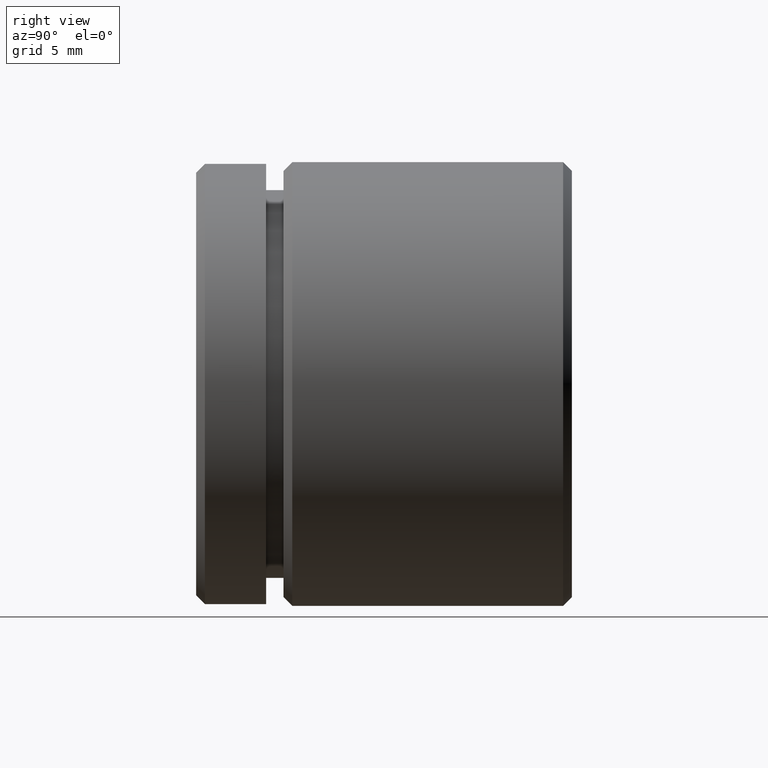
[diagram: clean part render]
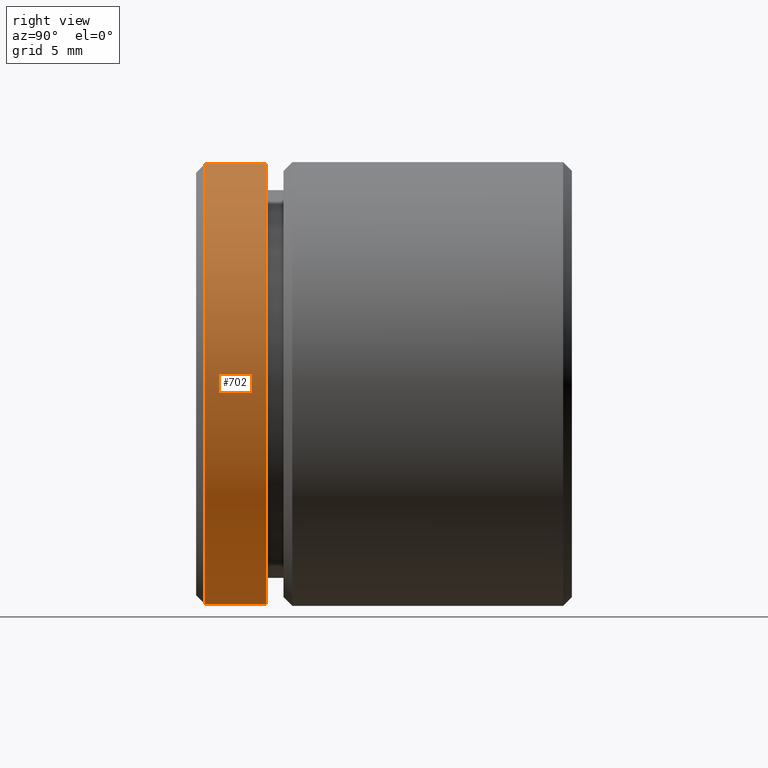
[diagram: same view with one face highlighted and labeled with its STEP entity id]
A machine part, right view. The second image highlights one B-rep face of the part: STEP entity #702.
In plain terms, the highlighted cylindrical surface (partial cylindrical patch) has radius 12.6 mm, axis along (-0, -1, -0).
Its self-contained STEP definition (entity closure, byte-faithful):
#12 = CARTESIAN_POINT ( 'NONE',  ( 0.0000000000000000000, 4.000000000000000000, 0.0000000000000000000 ) ) ;
#14 = ORIENTED_EDGE ( 'NONE', *, *, #704, .T. ) ;
#79 = FACE_OUTER_BOUND ( 'NONE', #397, .T. ) ;
#87 = CARTESIAN_POINT ( 'NONE',  ( 1.543054966925665100E-015, 0.5000000000000073300, 12.60000000000000000 ) ) ;
#92 = CARTESIAN_POINT ( 'NONE',  ( 0.0000000000000000000, 4.000000000000000000, -12.60000000000000000 ) ) ;
#99 = VERTEX_POINT ( 'NONE', #87 ) ;
#156 = CYLINDRICAL_SURFACE ( 'NONE', #676, 12.60000000000000000 ) ;
#161 = DIRECTION ( 'NONE',  ( 0.0000000000000000000, 1.000000000000000000, 0.0000000000000000000 ) ) ;
#165 = DIRECTION ( 'NONE',  ( -0.0000000000000000000, -1.000000000000000000, -0.0000000000000000000 ) ) ;
#166 = DIRECTION ( 'NONE',  ( 0.0000000000000000000, 0.0000000000000000000, -1.000000000000000000 ) ) ;
#209 = DIRECTION ( 'NONE',  ( 0.0000000000000000000, 0.0000000000000000000, -1.000000000000000000 ) ) ;
#218 = CARTESIAN_POINT ( 'NONE',  ( 0.0000000000000000000, 0.0000000000000000000, -12.60000000000000000 ) ) ;
#254 = CIRCLE ( 'NONE', #622, 12.60000000000000000 ) ;
#274 = EDGE_CURVE ( 'NONE', #99, #359, #305, .T. ) ;
#305 = CIRCLE ( 'NONE', #742, 12.60000000000000000 ) ;
#314 = CARTESIAN_POINT ( 'NONE',  ( 0.0000000000000000000, 0.5000000000000073300, 0.0000000000000000000 ) ) ;
#333 = LINE ( 'NONE', #218, #353 ) ;
#342 = CARTESIAN_POINT ( 'NONE',  ( 0.0000000000000000000, 0.5000000000000073300, -12.60000000000000000 ) ) ;
#353 = VECTOR ( 'NONE', #165, 1000.000000000000000 ) ;
#359 = VERTEX_POINT ( 'NONE', #342 ) ;
#361 = CARTESIAN_POINT ( 'NONE',  ( 0.0000000000000000000, 0.0000000000000000000, 0.0000000000000000000 ) ) ;
#364 = VERTEX_POINT ( 'NONE', #785 ) ;
#397 = EDGE_LOOP ( 'NONE', ( #14, #597, #448, #634 ) ) ;
#416 = CARTESIAN_POINT ( 'NONE',  ( 1.543054966925665100E-015, 0.0000000000000000000, 12.60000000000000000 ) ) ;
#448 = ORIENTED_EDGE ( 'NONE', *, *, #274, .T. ) ;
#539 = EDGE_CURVE ( 'NONE', #364, #99, #559, .T. ) ;
#559 = LINE ( 'NONE', #416, #590 ) ;
#577 = DIRECTION ( 'NONE',  ( -0.0000000000000000000, -1.000000000000000000, -0.0000000000000000000 ) ) ;
#590 = VECTOR ( 'NONE', #623, 1000.000000000000000 ) ;
#597 = ORIENTED_EDGE ( 'NONE', *, *, #539, .T. ) ;
#622 = AXIS2_PLACEMENT_3D ( 'NONE', #12, #577, #845 ) ;
#623 = DIRECTION ( 'NONE',  ( -0.0000000000000000000, -1.000000000000000000, -0.0000000000000000000 ) ) ;
#634 = ORIENTED_EDGE ( 'NONE', *, *, #717, .F. ) ;
#659 = DIRECTION ( 'NONE',  ( -0.0000000000000000000, -1.000000000000000000, -0.0000000000000000000 ) ) ;
#672 = VERTEX_POINT ( 'NONE', #92 ) ;
#676 = AXIS2_PLACEMENT_3D ( 'NONE', #361, #659, #209 ) ;
#702 = ADVANCED_FACE ( 'NONE', ( #79 ), #156, .T. ) ;
#704 = EDGE_CURVE ( 'NONE', #672, #364, #254, .T. ) ;
#717 = EDGE_CURVE ( 'NONE', #672, #359, #333, .T. ) ;
#742 = AXIS2_PLACEMENT_3D ( 'NONE', #314, #161, #166 ) ;
#785 = CARTESIAN_POINT ( 'NONE',  ( 1.543054966925665100E-015, 4.000000000000000000, 12.60000000000000000 ) ) ;
#845 = DIRECTION ( 'NONE',  ( 0.0000000000000000000, 0.0000000000000000000, -1.000000000000000000 ) ) ;